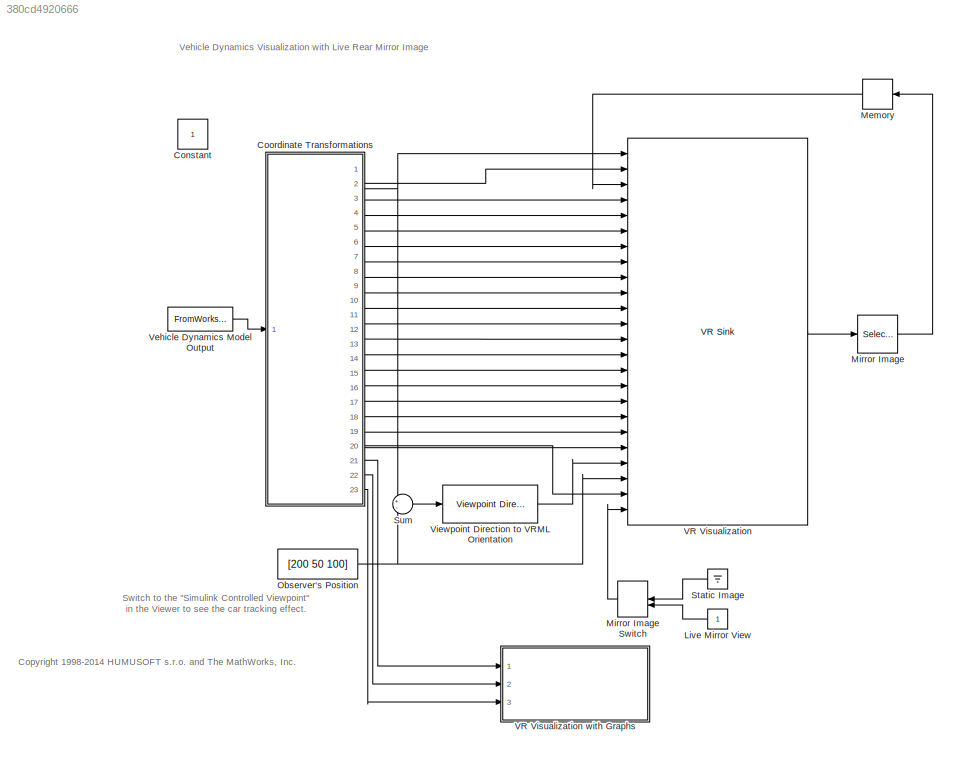
MODEL slx_380cd4920666
KIND model
CONFIG AbsTol = auto
CONFIG FixedStep = auto
CONFIG MaxStep = auto
CONFIG MinStep = auto
CONFIG PostLoadFcn = load octavia_testlap
CONFIG RelTol = 1e-3
CONFIG SampleTimeConstraint = Unconstrained
CONFIG Solver = VariableStepDiscrete
CONFIG SolverMode = Auto
CONFIG SolverName = VariableStepDiscrete
CONFIG StartTime = 0.0
CONFIG StopTime = 111.56
BLOCK [Constant] Constant
  IOType = siggen
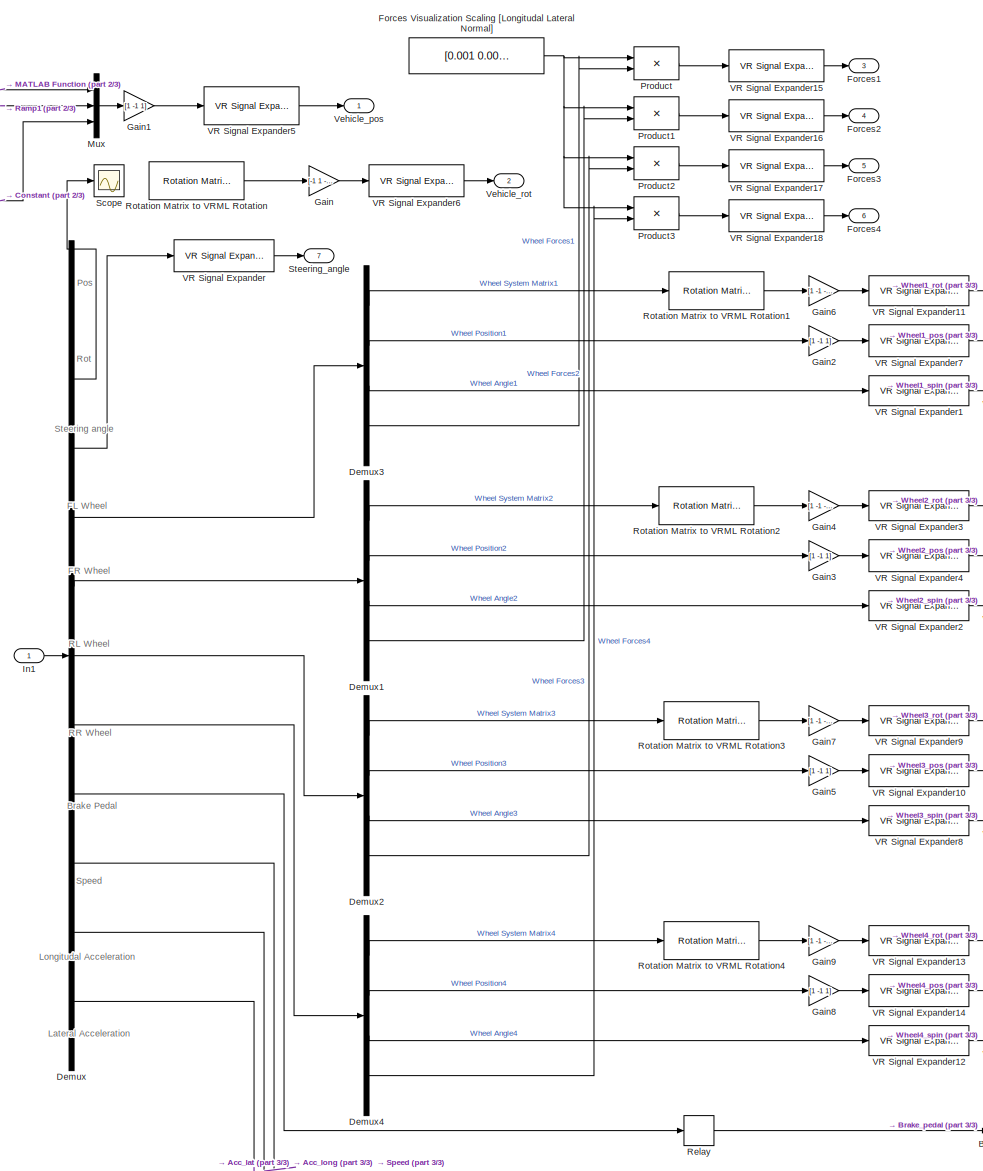
[diagram: Coordinate Transformations - part 1/3, most of the canvas]
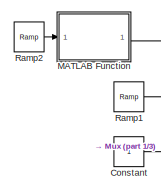
[diagram: Coordinate Transformations - part 2/3, top left region]
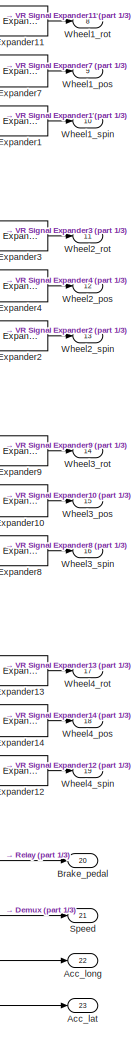
[diagram: Coordinate Transformations - part 3/3, right side, full height]
BLOCK [SubSystem] Coordinate Transformations
  Ports = [1, 23]
  RequestExecContextInheritance = off
  Variant = off
BLOCK [Outport] Coordinate Transformations/Acc_lat
  IconDisplay = Port number
  Port = 23
BLOCK [Outport] Coordinate Transformations/Acc_long
  IconDisplay = Port number
  Port = 22
BLOCK [Outport] Coordinate Transformations/Brake_pedal
  IconDisplay = Port number
  Port = 20
BLOCK [Constant] Coordinate Transformations/Constant
BLOCK [Demux] Coordinate Transformations/Demux
  Outputs = [3,9,1,16,16,16,16,1,1,1,1]
  Ports = [1, 11]
BLOCK [Demux] Coordinate Transformations/Demux1
  Outputs = [9,3,1,3]
  Ports = [1, 4]
BLOCK [Demux] Coordinate Transformations/Demux2
  Outputs = [9,3,1,3]
  Ports = [1, 4]
BLOCK [Demux] Coordinate Transformations/Demux3
  Outputs = [9,3,1,3]
  Ports = [1, 4]
BLOCK [Demux] Coordinate Transformations/Demux4
  Outputs = [9,3,1,3]
  Ports = [1, 4]
BLOCK [Constant] Coordinate Transformations/Forces Visualization Scaling [Longitudal Lateral Normal]
  Value = [0.001 0.001 0.00025]
BLOCK [Outport] Coordinate Transformations/Forces1
  IconDisplay = Port number
  Port = 3
BLOCK [Outport] Coordinate Transformations/Forces2
  IconDisplay = Port number
  Port = 4
BLOCK [Outport] Coordinate Transformations/Forces3
  IconDisplay = Port number
  Port = 5
BLOCK [Outport] Coordinate Transformations/Forces4
  IconDisplay = Port number
  Port = 6
BLOCK [Gain] Coordinate Transformations/Gain
  Gain = [-1 1 -1 1]
BLOCK [Gain] Coordinate Transformations/Gain1
  Gain = [1 -1 1]
BLOCK [Gain] Coordinate Transformations/Gain2
  Gain = [1 -1 1]
BLOCK [Gain] Coordinate Transformations/Gain3
  Gain = [1 -1 1]
BLOCK [Gain] Coordinate Transformations/Gain4
  Gain = [1 -1 -1 1]
BLOCK [Gain] Coordinate Transformations/Gain5
  Gain = [1 -1 1]
BLOCK [Gain] Coordinate Transformations/Gain6
  Gain = [1 -1 -1 1]
BLOCK [Gain] Coordinate Transformations/Gain7
  Gain = [1 -1 -1 1]
BLOCK [Gain] Coordinate Transformations/Gain8
  Gain = [1 -1 1]
BLOCK [Gain] Coordinate Transformations/Gain9
  Gain = [1 -1 -1 1]
BLOCK [Inport] Coordinate Transformations/In1
  IconDisplay = Port number
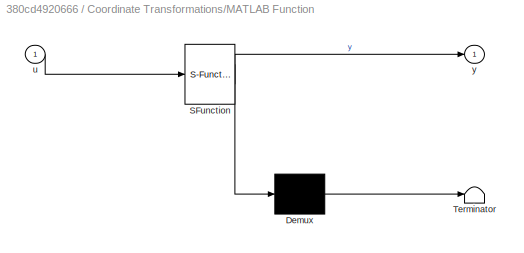
BLOCK [SubSystem] Coordinate Transformations/MATLAB Function
  ErrorFcn = Stateflow.Translate.translate
  PermitHierarchicalResolution = ExplicitOnly
  Ports = [1, 1]
  RequestExecContextInheritance = off
  SFBlockType = MATLAB Function
  TreatAsAtomicUnit = on
  Variant = off
BLOCK [Demux] Coordinate Transformations/MATLAB Function/ Demux 
  Outputs = 1
  Ports = [1, 1]
BLOCK [S-Function] Coordinate Transformations/MATLAB Function/ SFunction 
  EnableBusSupport = on
  FunctionName = sf_sfun
  PortCounts = [1 2]
  Ports = [1, 2]
  SFunctionDeploymentMode = off
  Tag = Stateflow S-Function vr_octavia_mirror 2
BLOCK [Terminator] Coordinate Transformations/MATLAB Function/ Terminator 
BLOCK [Inport] Coordinate Transformations/MATLAB Function/u
  IconDisplay = Port number
BLOCK [Outport] Coordinate Transformations/MATLAB Function/y
  IconDisplay = Port number
BLOCK [Mux] Coordinate Transformations/Mux
  DisplayOption = bar
  Inputs = 3
  Ports = [3, 1]
BLOCK [Product] Coordinate Transformations/Product
  InputSameDT = off
  Ports = [2, 1]
  RndMeth = Floor
BLOCK [Product] Coordinate Transformations/Product1
  InputSameDT = off
  Ports = [2, 1]
  RndMeth = Floor
BLOCK [Product] Coordinate Transformations/Product2
  InputSameDT = off
  Ports = [2, 1]
  RndMeth = Floor
BLOCK [Product] Coordinate Transformations/Product3
  InputSameDT = off
  Ports = [2, 1]
  RndMeth = Floor
BLOCK [Reference] Coordinate Transformations/Ramp1  REF=simulink/Sources/Ramp
  Ports = [0, 1]
  SourceBlock = simulink/Sources/Ramp
  SourceType = Ramp
BLOCK [Reference] Coordinate Transformations/Ramp2  REF=simulink/Sources/Ramp
  Ports = [0, 1]
  SourceBlock = simulink/Sources/Ramp
  SourceType = Ramp
BLOCK [Relay] Coordinate Transformations/Relay
BLOCK [Reference] Coordinate Transformations/Rotation Matrix to VRML Rotation  REF=vrlib/Utilities/Rotation Matrix
to VRML Rotation
  Ports = [1, 1]
  SourceBlock = vrlib/Utilities/Rotation Matrix\nto VRML Rotation
  SourceType = Rotation Matrix to VRML Rotation
BLOCK [Reference] Coordinate Transformations/Rotation Matrix to VRML Rotation1  REF=vrlib/Utilities/Rotation Matrix
to VRML Rotation
  Ports = [1, 1]
  SourceBlock = vrlib/Utilities/Rotation Matrix\nto VRML Rotation
  SourceType = Rotation Matrix to VRML Rotation
BLOCK [Reference] Coordinate Transformations/Rotation Matrix to VRML Rotation2  REF=vrlib/Utilities/Rotation Matrix
to VRML Rotation
  Ports = [1, 1]
  SourceBlock = vrlib/Utilities/Rotation Matrix\nto VRML Rotation
  SourceType = Rotation Matrix to VRML Rotation
BLOCK [Reference] Coordinate Transformations/Rotation Matrix to VRML Rotation3  REF=vrlib/Utilities/Rotation Matrix
to VRML Rotation
  Ports = [1, 1]
  SourceBlock = vrlib/Utilities/Rotation Matrix\nto VRML Rotation
  SourceType = Rotation Matrix to VRML Rotation
BLOCK [Reference] Coordinate Transformations/Rotation Matrix to VRML Rotation4  REF=vrlib/Utilities/Rotation Matrix
to VRML Rotation
  Ports = [1, 1]
  SourceBlock = vrlib/Utilities/Rotation Matrix\nto VRML Rotation
  SourceType = Rotation Matrix to VRML Rotation
BLOCK [Scope] Coordinate Transformations/Scope
  Ports = [1]
  ScopeSpecificationString = Simulink.scopes.TimeScopeBlockCfg('CurrentConfiguration', extmgr.ConfigurationSet(extmgr.Configuration('Core','General UI',true),extmgr.Configuration('Core','Source UI',true),extmgr.Configuration('Sources','WiredSimulink',true),extmgr.Configuration('Visuals','Time Domain',true,'SerializedDisplays',{struct('MinYLimReal','-1.02958','MaxYLimReal','6.72818','YLabelReal','','MinYLimMag','0.00000','MaxY...<+1486ch>
BLOCK [Outport] Coordinate Transformations/Speed
  IconDisplay = Port number
  Port = 21
BLOCK [Outport] Coordinate Transformations/Steering_angle
  IconDisplay = Port number
  Port = 7
BLOCK [Reference] Coordinate Transformations/VR Signal Expander  REF=vrlib/VR Signal Expander
  Ports = [1, 1]
  SourceBlock = vrlib/VR Signal Expander
  SourceType = VR Signal Expander
BLOCK [Reference] Coordinate Transformations/VR Signal Expander1  REF=vrlib/VR Signal Expander
  Ports = [1, 1]
  SourceBlock = vrlib/VR Signal Expander
  SourceType = VR Signal Expander
BLOCK [Reference] Coordinate Transformations/VR Signal Expander10  REF=vrlib/VR Signal Expander
  Ports = [1, 1]
  SourceBlock = vrlib/VR Signal Expander
  SourceType = VR Signal Expander
BLOCK [Reference] Coordinate Transformations/VR Signal Expander11  REF=vrlib/VR Signal Expander
  Ports = [1, 1]
  SourceBlock = vrlib/VR Signal Expander
  SourceType = VR Signal Expander
BLOCK [Reference] Coordinate Transformations/VR Signal Expander12  REF=vrlib/VR Signal Expander
  Ports = [1, 1]
  SourceBlock = vrlib/VR Signal Expander
  SourceType = VR Signal Expander
BLOCK [Reference] Coordinate Transformations/VR Signal Expander13  REF=vrlib/VR Signal Expander
  Ports = [1, 1]
  SourceBlock = vrlib/VR Signal Expander
  SourceType = VR Signal Expander
BLOCK [Reference] Coordinate Transformations/VR Signal Expander14  REF=vrlib/VR Signal Expander
  Ports = [1, 1]
  SourceBlock = vrlib/VR Signal Expander
  SourceType = VR Signal Expander
BLOCK [Reference] Coordinate Transformations/VR Signal Expander15  REF=vrlib/VR Signal Expander
  Ports = [1, 1]
  SourceBlock = vrlib/VR Signal Expander
  SourceType = VR Signal Expander
BLOCK [Reference] Coordinate Transformations/VR Signal Expander16  REF=vrlib/VR Signal Expander
  Ports = [1, 1]
  SourceBlock = vrlib/VR Signal Expander
  SourceType = VR Signal Expander
BLOCK [Reference] Coordinate Transformations/VR Signal Expander17  REF=vrlib/VR Signal Expander
  Ports = [1, 1]
  SourceBlock = vrlib/VR Signal Expander
  SourceType = VR Signal Expander
BLOCK [Reference] Coordinate Transformations/VR Signal Expander18  REF=vrlib/VR Signal Expander
  Ports = [1, 1]
  SourceBlock = vrlib/VR Signal Expander
  SourceType = VR Signal Expander
BLOCK [Reference] Coordinate Transformations/VR Signal Expander2  REF=vrlib/VR Signal Expander
  Ports = [1, 1]
  SourceBlock = vrlib/VR Signal Expander
  SourceType = VR Signal Expander
BLOCK [Reference] Coordinate Transformations/VR Signal Expander3  REF=vrlib/VR Signal Expander
  Ports = [1, 1]
  SourceBlock = vrlib/VR Signal Expander
  SourceType = VR Signal Expander
BLOCK [Reference] Coordinate Transformations/VR Signal Expander4  REF=vrlib/VR Signal Expander
  Ports = [1, 1]
  SourceBlock = vrlib/VR Signal Expander
  SourceType = VR Signal Expander
BLOCK [Reference] Coordinate Transformations/VR Signal Expander5  REF=vrlib/VR Signal Expander
  Ports = [1, 1]
  SourceBlock = vrlib/VR Signal Expander
  SourceType = VR Signal Expander
BLOCK [Reference] Coordinate Transformations/VR Signal Expander6  REF=vrlib/VR Signal Expander
  Ports = [1, 1]
  SourceBlock = vrlib/VR Signal Expander
  SourceType = VR Signal Expander
BLOCK [Reference] Coordinate Transformations/VR Signal Expander7  REF=vrlib/VR Signal Expander
  Ports = [1, 1]
  SourceBlock = vrlib/VR Signal Expander
  SourceType = VR Signal Expander
BLOCK [Reference] Coordinate Transformations/VR Signal Expander8  REF=vrlib/VR Signal Expander
  Ports = [1, 1]
  SourceBlock = vrlib/VR Signal Expander
  SourceType = VR Signal Expander
BLOCK [Reference] Coordinate Transformations/VR Signal Expander9  REF=vrlib/VR Signal Expander
  Ports = [1, 1]
  SourceBlock = vrlib/VR Signal Expander
  SourceType = VR Signal Expander
BLOCK [Outport] Coordinate Transformations/Vehicle_pos
  IconDisplay = Port number
BLOCK [Outport] Coordinate Transformations/Vehicle_rot
  IconDisplay = Port number
  Port = 2
BLOCK [Outport] Coordinate Transformations/Wheel1_pos
  IconDisplay = Port number
  Port = 9
BLOCK [Outport] Coordinate Transformations/Wheel1_rot
  IconDisplay = Port number
  Port = 8
BLOCK [Outport] Coordinate Transformations/Wheel1_spin
  IconDisplay = Port number
  Port = 10
BLOCK [Outport] Coordinate Transformations/Wheel2_pos
  IconDisplay = Port number
  Port = 12
BLOCK [Outport] Coordinate Transformations/Wheel2_rot
  IconDisplay = Port number
  Port = 11
BLOCK [Outport] Coordinate Transformations/Wheel2_spin
  IconDisplay = Port number
  Port = 13
BLOCK [Outport] Coordinate Transformations/Wheel3_pos
  IconDisplay = Port number
  Port = 15
BLOCK [Outport] Coordinate Transformations/Wheel3_rot
  IconDisplay = Port number
  Port = 14
BLOCK [Outport] Coordinate Transformations/Wheel3_spin
  IconDisplay = Port number
  Port = 16
BLOCK [Outport] Coordinate Transformations/Wheel4_pos
  IconDisplay = Port number
  Port = 18
BLOCK [Outport] Coordinate Transformations/Wheel4_rot
  IconDisplay = Port number
  Port = 17
BLOCK [Outport] Coordinate Transformations/Wheel4_spin
  IconDisplay = Port number
  Port = 19
BLOCK [Constant] Live Mirror View
BLOCK [Memory] Memory
BLOCK [Selector] Mirror Image
  IndexOptions = Select all,Index vector (dialog),Select all
  Indices = 200:-1:1,160:-1:1,1
  InputPortWidth = 3
  NumberOfDimensions = 3
  OutputSizes = 1,1,1
  Ports = [1, 1]
BLOCK [ManualSwitch] Mirror Image Switch
  CurrentSetting = 0
BLOCK [Constant] Observer's Position
  Value = [200 50 100]
BLOCK [Ground] Static Image
BLOCK [Sum] Sum
  IconShape = round
  InputSameDT = off
  Inputs = +-
  OutDataTypeStr = Inherit: Inherit via internal rule
  Ports = [2, 1]
  SaturateOnIntegerOverflow = off
BLOCK [Reference] VR Visualization  REF=vrlib/VR Sink
  InstantiateOnLoad = on
  Ports = [24, 1]
  SourceBlock = vrlib/VR Sink
  SourceType = Virtual Reality Sink
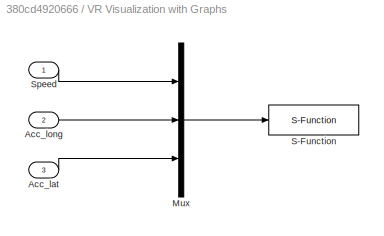
BLOCK [SubSystem] VR Visualization with Graphs
  CopyFcn = octavia_graphs([], [], [], 'CopyBlock', [], [])
  DeleteFcn = octavia_graphs([], [], [], 'DeleteBlock', [], [])
  LoadFcn = octavia_graphs([], [], [], 'LoadBlock', [], [])
  NameChangeFcn = octavia_graphs([], [], [], 'NameChange', [], [])
  Ports = [3]
  RequestExecContextInheritance = off
  StartFcn = octavia_graphs([], [], [], 'Start', [], 'octavia_scene.wrl')
  StopFcn = octavia_graphs([], [], [], 'Stop', [], [])
  Variant = off
BLOCK [Inport] VR Visualization with Graphs/Acc_lat
  IconDisplay = Port number
  Port = 3
BLOCK [Inport] VR Visualization with Graphs/Acc_long
  IconDisplay = Port number
  Port = 2
BLOCK [Mux] VR Visualization with Graphs/Mux
  DisplayOption = bar
  Inputs = 3
  Ports = [3, 1]
BLOCK [S-Function] VR Visualization with Graphs/S-Function
  EnableBusSupport = off
  FunctionName = octavia_graphs
  Parameters = [y1range y2range y3range], worldfile
  Ports = [1]
  SFunctionDeploymentMode = off
BLOCK [Inport] VR Visualization with Graphs/Speed
  IconDisplay = Port number
BLOCK [FromWorkspace] Vehicle Dynamics Model Output
  OutputAfterFinalValue = Holding final value
  SampleTime = 0.04
  VariableName = test_lap
BLOCK [Reference] Viewpoint Direction to VRML Orientation  REF=vrlib/Utilities/Viewpoint Direction
to VRML Orientation
  Ports = [1, 1]
  SourceBlock = vrlib/Utilities/Viewpoint Direction\nto VRML Orientation
  SourceType = Viewpoint Direction to VRML Orientation
ANNOTATION (root): <copyright redacted>
ANNOTATION (root): Switch to the "Simulink Controlled Viewpoint" in the Viewer to see the car tracking effect.
ANNOTATION (root): Vehicle Dynamics Visualization with Live Rear Mirror Image
ANNOTATION Coordinate Transformations: Brake Pedal
ANNOTATION Coordinate Transformations: FL Wheel
ANNOTATION Coordinate Transformations: FR Wheel
ANNOTATION Coordinate Transformations: Lateral Acceleration
ANNOTATION Coordinate Transformations: Longitudal Acceleration
ANNOTATION Coordinate Transformations: Pos
ANNOTATION Coordinate Transformations: RL Wheel
ANNOTATION Coordinate Transformations: RR Wheel
ANNOTATION Coordinate Transformations: Rot
ANNOTATION Coordinate Transformations: Speed
ANNOTATION Coordinate Transformations: Steering angle
LINE Coordinate Transformations/Constant:1 -> Coordinate Transformations/Mux:3
LINE Coordinate Transformations/Demux1:1 -> Coordinate Transformations/Rotation Matrix to VRML Rotation2:1
LINE Coordinate Transformations/Demux1:2 -> Coordinate Transformations/Gain3:1
LINE Coordinate Transformations/Demux1:3 -> Coordinate Transformations/VR Signal Expander2:1
LINE Coordinate Transformations/Demux1:4 -> Coordinate Transformations/Product1:2
LINE Coordinate Transformations/Demux2:1 -> Coordinate Transformations/Rotation Matrix to VRML Rotation3:1
LINE Coordinate Transformations/Demux2:2 -> Coordinate Transformations/Gain5:1
LINE Coordinate Transformations/Demux2:3 -> Coordinate Transformations/VR Signal Expander8:1
LINE Coordinate Transformations/Demux2:4 -> Coordinate Transformations/Product2:2
LINE Coordinate Transformations/Demux3:1 -> Coordinate Transformations/Rotation Matrix to VRML Rotation1:1
LINE Coordinate Transformations/Demux3:2 -> Coordinate Transformations/Gain2:1
LINE Coordinate Transformations/Demux3:3 -> Coordinate Transformations/VR Signal Expander1:1
LINE Coordinate Transformations/Demux3:4 -> Coordinate Transformations/Product:2
LINE Coordinate Transformations/Demux4:1 -> Coordinate Transformations/Rotation Matrix to VRML Rotation4:1
LINE Coordinate Transformations/Demux4:2 -> Coordinate Transformations/Gain8:1
LINE Coordinate Transformations/Demux4:3 -> Coordinate Transformations/VR Signal Expander12:1
LINE Coordinate Transformations/Demux4:4 -> Coordinate Transformations/Product3:2
LINE Coordinate Transformations/Demux:10 -> Coordinate Transformations/Acc_long:1
LINE Coordinate Transformations/Demux:11 -> Coordinate Transformations/Acc_lat:1
LINE Coordinate Transformations/Demux:2 -> Coordinate Transformations/Scope:1
LINE Coordinate Transformations/Demux:3 -> Coordinate Transformations/VR Signal Expander:1
LINE Coordinate Transformations/Demux:4 -> Coordinate Transformations/Demux3:1
LINE Coordinate Transformations/Demux:5 -> Coordinate Transformations/Demux1:1
LINE Coordinate Transformations/Demux:6 -> Coordinate Transformations/Demux2:1
LINE Coordinate Transformations/Demux:7 -> Coordinate Transformations/Demux4:1
LINE Coordinate Transformations/Demux:8 -> Coordinate Transformations/Relay:1
LINE Coordinate Transformations/Demux:9 -> Coordinate Transformations/Speed:1
NET Coordinate Transformations/Forces Visualization Scaling [Longitudal Lateral Normal]:1 -> Coordinate Transformations/Product1:1, Coordinate Transformations/Product2:1, Coordinate Transformations/Product3:1, Coordinate Transformations/Product:1
LINE Coordinate Transformations/Gain1:1 -> Coordinate Transformations/VR Signal Expander5:1
LINE Coordinate Transformations/Gain2:1 -> Coordinate Transformations/VR Signal Expander7:1
LINE Coordinate Transformations/Gain3:1 -> Coordinate Transformations/VR Signal Expander4:1
LINE Coordinate Transformations/Gain4:1 -> Coordinate Transformations/VR Signal Expander3:1
LINE Coordinate Transformations/Gain5:1 -> Coordinate Transformations/VR Signal Expander10:1
LINE Coordinate Transformations/Gain6:1 -> Coordinate Transformations/VR Signal Expander11:1
LINE Coordinate Transformations/Gain7:1 -> Coordinate Transformations/VR Signal Expander9:1
LINE Coordinate Transformations/Gain8:1 -> Coordinate Transformations/VR Signal Expander14:1
LINE Coordinate Transformations/Gain9:1 -> Coordinate Transformations/VR Signal Expander13:1
LINE Coordinate Transformations/Gain:1 -> Coordinate Transformations/VR Signal Expander6:1
LINE Coordinate Transformations/In1:1 -> Coordinate Transformations/Demux:1
LINE Coordinate Transformations/MATLAB Function:1 -> Coordinate Transformations/Mux:1
LINE Coordinate Transformations/Mux:1 -> Coordinate Transformations/Gain1:1
LINE Coordinate Transformations/Product1:1 -> Coordinate Transformations/VR Signal Expander16:1
LINE Coordinate Transformations/Product2:1 -> Coordinate Transformations/VR Signal Expander17:1
LINE Coordinate Transformations/Product3:1 -> Coordinate Transformations/VR Signal Expander18:1
LINE Coordinate Transformations/Product:1 -> Coordinate Transformations/VR Signal Expander15:1
LINE Coordinate Transformations/Ramp1:1 -> Coordinate Transformations/Mux:2
LINE Coordinate Transformations/Ramp2:1 -> Coordinate Transformations/MATLAB Function:1
LINE Coordinate Transformations/Relay:1 -> Coordinate Transformations/Brake_pedal:1
LINE Coordinate Transformations/Rotation Matrix to VRML Rotation1:1 -> Coordinate Transformations/Gain6:1
LINE Coordinate Transformations/Rotation Matrix to VRML Rotation2:1 -> Coordinate Transformations/Gain4:1
LINE Coordinate Transformations/Rotation Matrix to VRML Rotation3:1 -> Coordinate Transformations/Gain7:1
LINE Coordinate Transformations/Rotation Matrix to VRML Rotation4:1 -> Coordinate Transformations/Gain9:1
LINE Coordinate Transformations/Rotation Matrix to VRML Rotation:1 -> Coordinate Transformations/Gain:1
LINE Coordinate Transformations/VR Signal Expander10:1 -> Coordinate Transformations/Wheel3_pos:1
LINE Coordinate Transformations/VR Signal Expander11:1 -> Coordinate Transformations/Wheel1_rot:1
LINE Coordinate Transformations/VR Signal Expander12:1 -> Coordinate Transformations/Wheel4_spin:1
LINE Coordinate Transformations/VR Signal Expander13:1 -> Coordinate Transformations/Wheel4_rot:1
LINE Coordinate Transformations/VR Signal Expander14:1 -> Coordinate Transformations/Wheel4_pos:1
LINE Coordinate Transformations/VR Signal Expander15:1 -> Coordinate Transformations/Forces1:1
LINE Coordinate Transformations/VR Signal Expander16:1 -> Coordinate Transformations/Forces2:1
LINE Coordinate Transformations/VR Signal Expander17:1 -> Coordinate Transformations/Forces3:1
LINE Coordinate Transformations/VR Signal Expander18:1 -> Coordinate Transformations/Forces4:1
LINE Coordinate Transformations/VR Signal Expander1:1 -> Coordinate Transformations/Wheel1_spin:1
LINE Coordinate Transformations/VR Signal Expander2:1 -> Coordinate Transformations/Wheel2_spin:1
LINE Coordinate Transformations/VR Signal Expander3:1 -> Coordinate Transformations/Wheel2_rot:1
LINE Coordinate Transformations/VR Signal Expander4:1 -> Coordinate Transformations/Wheel2_pos:1
LINE Coordinate Transformations/VR Signal Expander5:1 -> Coordinate Transformations/Vehicle_pos:1
LINE Coordinate Transformations/VR Signal Expander6:1 -> Coordinate Transformations/Vehicle_rot:1
LINE Coordinate Transformations/VR Signal Expander7:1 -> Coordinate Transformations/Wheel1_pos:1
LINE Coordinate Transformations/VR Signal Expander8:1 -> Coordinate Transformations/Wheel3_spin:1
LINE Coordinate Transformations/VR Signal Expander9:1 -> Coordinate Transformations/Wheel3_rot:1
LINE Coordinate Transformations/VR Signal Expander:1 -> Coordinate Transformations/Steering_angle:1
NET Coordinate Transformations:1 -> Sum:1, VR Visualization:1
LINE Coordinate Transformations:10 -> VR Visualization:11
LINE Coordinate Transformations:11 -> VR Visualization:12
LINE Coordinate Transformations:12 -> VR Visualization:13
LINE Coordinate Transformations:13 -> VR Visualization:14
LINE Coordinate Transformations:14 -> VR Visualization:15
LINE Coordinate Transformations:15 -> VR Visualization:16
LINE Coordinate Transformations:16 -> VR Visualization:17
LINE Coordinate Transformations:17 -> VR Visualization:18
LINE Coordinate Transformations:18 -> VR Visualization:19
LINE Coordinate Transformations:19 -> VR Visualization:20
LINE Coordinate Transformations:2 -> VR Visualization:2
LINE Coordinate Transformations:20 -> VR Visualization:23
LINE Coordinate Transformations:21 -> VR Visualization with Graphs:1
LINE Coordinate Transformations:22 -> VR Visualization with Graphs:2
LINE Coordinate Transformations:23 -> VR Visualization with Graphs:3
LINE Coordinate Transformations:3 -> VR Visualization:4
LINE Coordinate Transformations:4 -> VR Visualization:5
LINE Coordinate Transformations:5 -> VR Visualization:6
LINE Coordinate Transformations:6 -> VR Visualization:7
LINE Coordinate Transformations:7 -> VR Visualization:8
LINE Coordinate Transformations:8 -> VR Visualization:9
LINE Coordinate Transformations:9 -> VR Visualization:10
LINE Live Mirror View:1 -> Mirror Image Switch:2
LINE Memory:1 -> VR Visualization:3
LINE Mirror Image Switch:1 -> VR Visualization:24
LINE Mirror Image:1 -> Memory:1
NET Observer's Position:1 -> Sum:2, VR Visualization:22
LINE Static Image:1 -> Mirror Image Switch:1
LINE Sum:1 -> Viewpoint Direction to VRML Orientation:1
LINE VR Visualization with Graphs/Acc_lat:1 -> VR Visualization with Graphs/Mux:3
LINE VR Visualization with Graphs/Acc_long:1 -> VR Visualization with Graphs/Mux:2
LINE VR Visualization with Graphs/Mux:1 -> VR Visualization with Graphs/S-Function:1
LINE VR Visualization with Graphs/Speed:1 -> VR Visualization with Graphs/Mux:1
LINE VR Visualization:1 -> Mirror Image:1
LINE Vehicle Dynamics Model Output:1 -> Coordinate Transformations:1
LINE Viewpoint Direction to VRML Orientation:1 -> VR Visualization:21
note: NET lines group one-source signal fan-out (src -> all destinations, sorted); 1:1 wires keep LINE
CHART Coordinate Transformations/MATLAB Function states=1 transitions=1
  STATE_LABEL 'eML_blk_kernel()'
  STATE_LABEL 'SCRIPT:\nfunction y = fcn(u)\n\n\tif u < 0 \n        y = -5;\n    elseif u < 20 \n        y = -5 + u/4;\n    elseif u < 40\n        y = 0;\n    elseif u < 80\n        y = -10 + u/4;\n    else\n        y = 10;\n    end\n    \nend'
